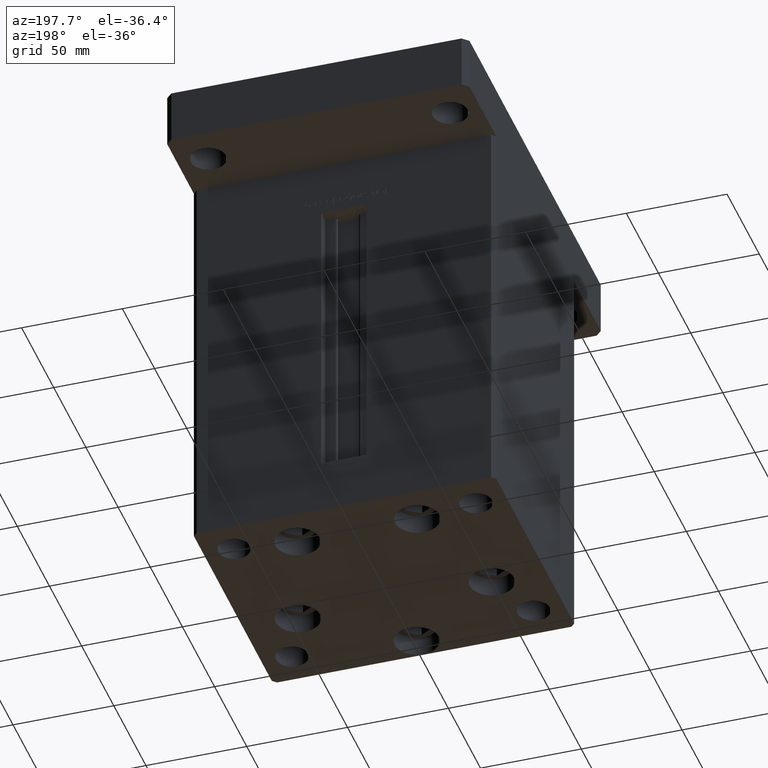
[diagram: clean part render]
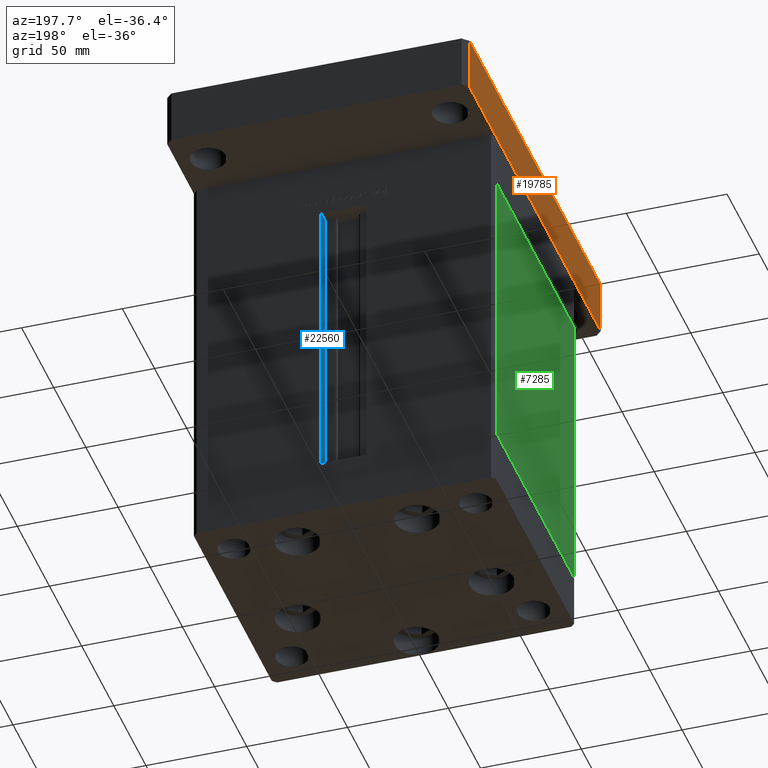
[diagram: same view with three faces highlighted in distinct colors, each labeled with its STEP entity id]
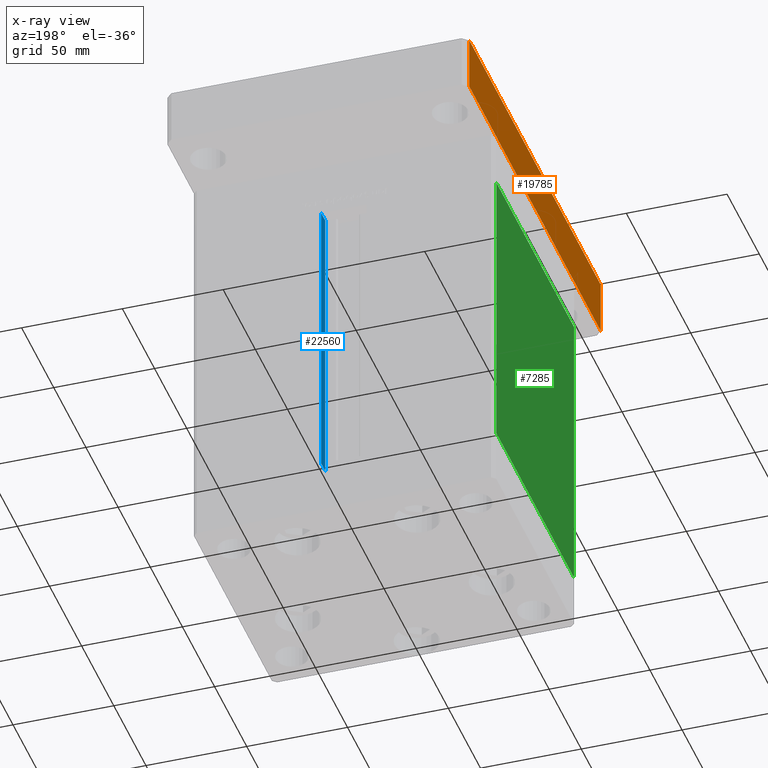
[diagram: x-ray of the same camera — body ghosted, the three highlighted faces saturated]
A machine part, auxiliary view with three faces highlighted in distinct colors.
The next image is the same camera in x-ray (body ghosted, the three faces saturated) — at least one of them is partly hidden behind the body in this view.
Their STEP definitions:

[orange] entity #19785 — the highlighted planar face has unit normal (1, 0, 0).
#879 = DIRECTION ( 'NONE',  ( -0.000000000000000000, -0.000000000000000000, -1.000000000000000000 ) ) ;
#2942 = LINE ( 'NONE', #31726, #28505 ) ;
#5031 = EDGE_CURVE ( 'NONE', #9748, #7386, #20330, .T. ) ;
#7386 = VERTEX_POINT ( 'NONE', #9172 ) ;
#8426 = CARTESIAN_POINT ( 'NONE',  ( -75.00000000000001421, 102.0000000000000000, 27.00000000000000000 ) ) ;
#8639 = VECTOR ( 'NONE', #16837, 1000.000000000000000 ) ;
#9172 = CARTESIAN_POINT ( 'NONE',  ( -74.99999999999998579, -102.0000000000000142, 27.00000000000000000 ) ) ;
#9748 = VERTEX_POINT ( 'NONE', #8426 ) ;
#9805 = VERTEX_POINT ( 'NONE', #36406 ) ;
#9951 = CARTESIAN_POINT ( 'NONE',  ( -74.99999999999998579, -102.0000000000000142, 0.000000000000000000 ) ) ;
#11207 = EDGE_LOOP ( 'NONE', ( #21319, #18726, #21782, #32211 ) ) ;
#11275 = DIRECTION ( 'NONE',  ( -0.000000000000000000, -0.000000000000000000, -1.000000000000000000 ) ) ;
#13475 = DIRECTION ( 'NONE',  ( -1.360567432138672081E-16, 1.000000000000000000, 0.000000000000000000 ) ) ;
#16062 = DIRECTION ( 'NONE',  ( 1.360567432138672081E-16, -1.000000000000000000, 0.000000000000000000 ) ) ;
#16837 = DIRECTION ( 'NONE',  ( 1.360567432138672081E-16, -1.000000000000000000, 0.000000000000000000 ) ) ;
#18045 = CARTESIAN_POINT ( 'NONE',  ( -75.00000000000001421, 102.0000000000000000, 27.00000000000000000 ) ) ;
#18726 = ORIENTED_EDGE ( 'NONE', *, *, #30614, .F. ) ;
#19785 = ADVANCED_FACE ( 'NONE', ( #47355 ), #38493, .F. ) ;
#20330 = LINE ( 'NONE', #52612, #8639 ) ;
#21319 = ORIENTED_EDGE ( 'NONE', *, *, #43506, .T. ) ;
#21782 = ORIENTED_EDGE ( 'NONE', *, *, #5031, .F. ) ;
#23636 = VECTOR ( 'NONE', #16062, 1000.000000000000000 ) ;
#25868 = VECTOR ( 'NONE', #879, 1000.000000000000000 ) ;
#28505 = VECTOR ( 'NONE', #11275, 1000.000000000000000 ) ;
#29694 = LINE ( 'NONE', #49872, #25868 ) ;
#30614 = EDGE_CURVE ( 'NONE', #7386, #39332, #29694, .T. ) ;
#31726 = CARTESIAN_POINT ( 'NONE',  ( -75.00000000000001421, 102.0000000000000000, 27.00000000000000000 ) ) ;
#32211 = ORIENTED_EDGE ( 'NONE', *, *, #34028, .T. ) ;
#34028 = EDGE_CURVE ( 'NONE', #9748, #9805, #2942, .T. ) ;
#34451 = DIRECTION ( 'NONE',  ( 1.000000000000000000, 1.360567432138672081E-16, -0.000000000000000000 ) ) ;
#36406 = CARTESIAN_POINT ( 'NONE',  ( -75.00000000000001421, 102.0000000000000000, 0.000000000000000000 ) ) ;
#38493 = PLANE ( 'NONE',  #43372 ) ;
#39332 = VERTEX_POINT ( 'NONE', #9951 ) ;
#39493 = CARTESIAN_POINT ( 'NONE',  ( -75.00000000000001421, 102.0000000000000000, 0.000000000000000000 ) ) ;
#43372 = AXIS2_PLACEMENT_3D ( 'NONE', #18045, #34451, #13475 ) ;
#43506 = EDGE_CURVE ( 'NONE', #9805, #39332, #48613, .T. ) ;
#47355 = FACE_OUTER_BOUND ( 'NONE', #11207, .T. ) ;
#48613 = LINE ( 'NONE', #39493, #23636 ) ;
#49872 = CARTESIAN_POINT ( 'NONE',  ( -74.99999999999998579, -102.0000000000000142, 27.00000000000000000 ) ) ;
#52612 = CARTESIAN_POINT ( 'NONE',  ( -75.00000000000001421, 102.0000000000000000, 27.00000000000000000 ) ) ;

[blue] entity #22560 — the highlighted planar face has unit normal (1, 0, 0).
#1004 = DIRECTION ( 'NONE',  ( -0.000000000000000000, -1.000000000000000000, 0.000000000000000000 ) ) ;
#2860 = VECTOR ( 'NONE', #11408, 1000.000000000000000 ) ;
#5586 = CARTESIAN_POINT ( 'NONE',  ( 11.24999999999999467, 62.49999999999999289, 147.0000000000000000 ) ) ;
#7689 = EDGE_CURVE ( 'NONE', #35724, #26391, #17180, .T. ) ;
#9327 = DIRECTION ( 'NONE',  ( 0.000000000000000000, 0.000000000000000000, -1.000000000000000000 ) ) ;
#9363 = CARTESIAN_POINT ( 'NONE',  ( 11.25000000000000178, 0.000000000000000000, 147.0000000000000000 ) ) ;
#11253 = CARTESIAN_POINT ( 'NONE',  ( 11.25000000000000178, 55.99999999999999289, 147.0000000000000000 ) ) ;
#11408 = DIRECTION ( 'NONE',  ( -0.000000000000000000, -0.000000000000000000, 1.000000000000000000 ) ) ;
#12603 = EDGE_CURVE ( 'NONE', #25853, #26391, #26953, .T. ) ;
#17180 = LINE ( 'NONE', #9363, #20787 ) ;
#17200 = EDGE_CURVE ( 'NONE', #37240, #35724, #19239, .T. ) ;
#17687 = PLANE ( 'NONE',  #42569 ) ;
#17952 = FACE_OUTER_BOUND ( 'NONE', #25525, .T. ) ;
#19239 = LINE ( 'NONE', #31853, #2860 ) ;
#19492 = ORIENTED_EDGE ( 'NONE', *, *, #12603, .T. ) ;
#20315 = ORIENTED_EDGE ( 'NONE', *, *, #17200, .F. ) ;
#20787 = VECTOR ( 'NONE', #1004, 1000.000000000000000 ) ;
#22560 = ADVANCED_FACE ( 'NONE', ( #17952 ), #17687, .F. ) ;
#24902 = ORIENTED_EDGE ( 'NONE', *, *, #46960, .F. ) ;
#25525 = EDGE_LOOP ( 'NONE', ( #20315, #24902, #19492, #39495 ) ) ;
#25853 = VERTEX_POINT ( 'NONE', #50737 ) ;
#26391 = VERTEX_POINT ( 'NONE', #11253 ) ;
#26953 = LINE ( 'NONE', #43115, #31074 ) ;
#31074 = VECTOR ( 'NONE', #47673, 1000.000000000000000 ) ;
#31853 = CARTESIAN_POINT ( 'NONE',  ( 11.25000000000000178, 62.49999999999999289, 0.000000000000000000 ) ) ;
#33543 = DIRECTION ( 'NONE',  ( 1.000000000000000000, -0.000000000000000000, 0.000000000000000000 ) ) ;
#33750 = LINE ( 'NONE', #50164, #42559 ) ;
#35724 = VERTEX_POINT ( 'NONE', #5586 ) ;
#37240 = VERTEX_POINT ( 'NONE', #43086 ) ;
#39495 = ORIENTED_EDGE ( 'NONE', *, *, #7689, .F. ) ;
#42087 = DIRECTION ( 'NONE',  ( 0.000000000000000000, 1.000000000000000000, 0.000000000000000000 ) ) ;
#42559 = VECTOR ( 'NONE', #42087, 1000.000000000000000 ) ;
#42569 = AXIS2_PLACEMENT_3D ( 'NONE', #45652, #33543, #9327 ) ;
#43086 = CARTESIAN_POINT ( 'NONE',  ( 11.25000000000000178, 62.49999999999999289, 0.000000000000000000 ) ) ;
#43115 = CARTESIAN_POINT ( 'NONE',  ( 11.25000000000000178, 55.99999999999999289, 0.000000000000000000 ) ) ;
#45652 = CARTESIAN_POINT ( 'NONE',  ( 11.25000000000000178, 55.99999999999999289, 0.000000000000000000 ) ) ;
#46960 = EDGE_CURVE ( 'NONE', #25853, #37240, #33750, .T. ) ;
#47673 = DIRECTION ( 'NONE',  ( -0.000000000000000000, -0.000000000000000000, 1.000000000000000000 ) ) ;
#50164 = CARTESIAN_POINT ( 'NONE',  ( 11.25000000000000178, 55.99999999999999289, 0.000000000000000000 ) ) ;
#50737 = CARTESIAN_POINT ( 'NONE',  ( 11.25000000000000178, 55.99999999999999289, 0.000000000000000000 ) ) ;

[green] entity #7285 — the highlighted planar face has unit normal (1, 0, 0).
#133 = ORIENTED_EDGE ( 'NONE', *, *, #23141, .F. ) ;
#246 = VERTEX_POINT ( 'NONE', #16278 ) ;
#1439 = VERTEX_POINT ( 'NONE', #52656 ) ;
#2472 = DIRECTION ( 'NONE',  ( 1.000000000000000000, 2.293849224432141861E-16, -0.000000000000000000 ) ) ;
#4117 = CARTESIAN_POINT ( 'NONE',  ( -75.00000000000001421, 60.50000000000000000, 0.000000000000000000 ) ) ;
#6174 = CARTESIAN_POINT ( 'NONE',  ( -74.99999999999998579, -60.50000000000000000, 147.0000000000000000 ) ) ;
#6329 = EDGE_CURVE ( 'NONE', #19120, #246, #8706, .T. ) ;
#6347 = ORIENTED_EDGE ( 'NONE', *, *, #6329, .T. ) ;
#7285 = ADVANCED_FACE ( 'NONE', ( #47426 ), #10560, .F. ) ;
#8706 = LINE ( 'NONE', #4117, #34464 ) ;
#10560 = PLANE ( 'NONE',  #13883 ) ;
#10596 = LINE ( 'NONE', #19198, #38266 ) ;
#11029 = CARTESIAN_POINT ( 'NONE',  ( -75.00000000000001421, 60.50000000000000000, 147.0000000000000000 ) ) ;
#11072 = CARTESIAN_POINT ( 'NONE',  ( -75.00000000000001421, 60.50000000000000000, 147.0000000000000000 ) ) ;
#11550 = DIRECTION ( 'NONE',  ( -0.000000000000000000, -0.000000000000000000, -1.000000000000000000 ) ) ;
#11568 = CARTESIAN_POINT ( 'NONE',  ( -75.00000000000001421, 60.50000000000000000, 147.0000000000000000 ) ) ;
#12469 = DIRECTION ( 'NONE',  ( 2.293849224432141861E-16, -1.000000000000000000, 0.000000000000000000 ) ) ;
#13107 = ORIENTED_EDGE ( 'NONE', *, *, #39324, .F. ) ;
#13883 = AXIS2_PLACEMENT_3D ( 'NONE', #11072, #2472, #31527 ) ;
#16278 = CARTESIAN_POINT ( 'NONE',  ( -74.99999999999998579, -60.50000000000000000, 0.000000000000000000 ) ) ;
#17556 = VECTOR ( 'NONE', #22590, 1000.000000000000000 ) ;
#19120 = VERTEX_POINT ( 'NONE', #21679 ) ;
#19198 = CARTESIAN_POINT ( 'NONE',  ( -75.00000000000001421, 60.50000000000000000, 147.0000000000000000 ) ) ;
#21679 = CARTESIAN_POINT ( 'NONE',  ( -75.00000000000001421, 60.50000000000000000, 0.000000000000000000 ) ) ;
#22590 = DIRECTION ( 'NONE',  ( -0.000000000000000000, -0.000000000000000000, -1.000000000000000000 ) ) ;
#23141 = EDGE_CURVE ( 'NONE', #50014, #1439, #10596, .T. ) ;
#24390 = VECTOR ( 'NONE', #11550, 1000.000000000000000 ) ;
#31527 = DIRECTION ( 'NONE',  ( -2.293849224432141861E-16, 1.000000000000000000, 0.000000000000000000 ) ) ;
#34464 = VECTOR ( 'NONE', #12469, 1000.000000000000000 ) ;
#38266 = VECTOR ( 'NONE', #38598, 1000.000000000000000 ) ;
#38470 = LINE ( 'NONE', #6174, #17556 ) ;
#38598 = DIRECTION ( 'NONE',  ( 2.293849224432141861E-16, -1.000000000000000000, 0.000000000000000000 ) ) ;
#39324 = EDGE_CURVE ( 'NONE', #1439, #246, #38470, .T. ) ;
#40087 = LINE ( 'NONE', #11029, #24390 ) ;
#42071 = EDGE_LOOP ( 'NONE', ( #6347, #13107, #133, #46239 ) ) ;
#43337 = EDGE_CURVE ( 'NONE', #50014, #19120, #40087, .T. ) ;
#46239 = ORIENTED_EDGE ( 'NONE', *, *, #43337, .T. ) ;
#47426 = FACE_OUTER_BOUND ( 'NONE', #42071, .T. ) ;
#50014 = VERTEX_POINT ( 'NONE', #11568 ) ;
#52656 = CARTESIAN_POINT ( 'NONE',  ( -74.99999999999998579, -60.50000000000000000, 147.0000000000000000 ) ) ;